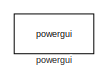
[diagram: root canvas - part 1/10, top left region]
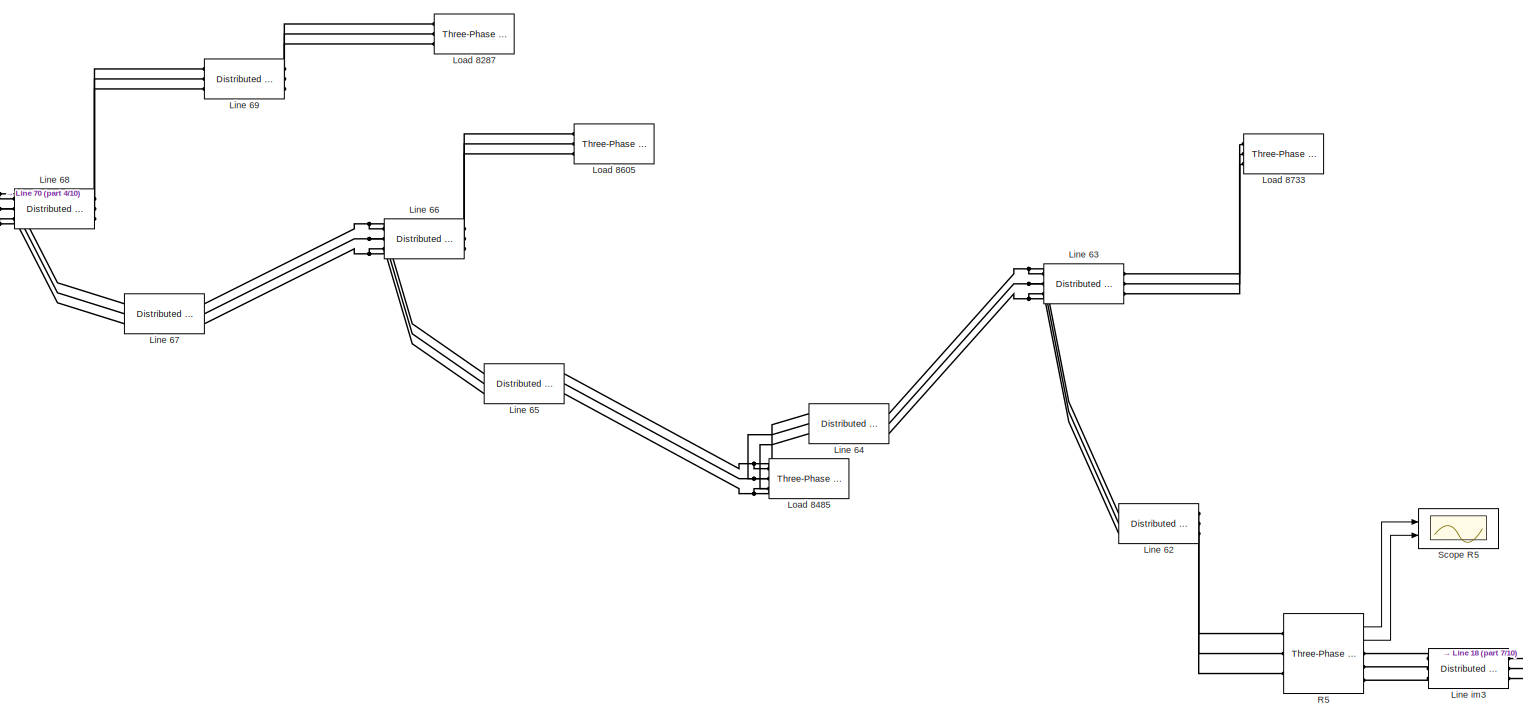
[diagram: root canvas - part 2/10, top left region]
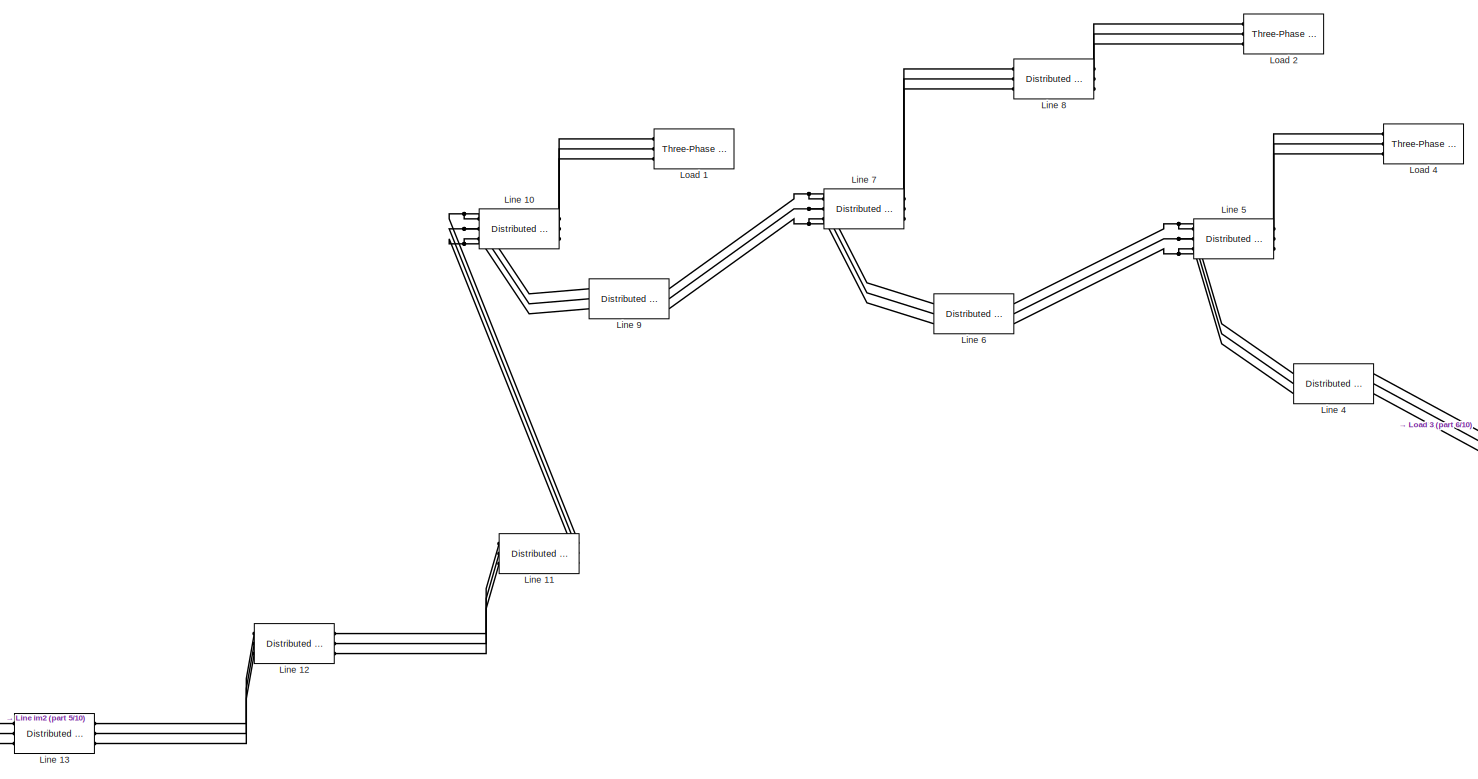
[diagram: root canvas - part 3/10, top right region]
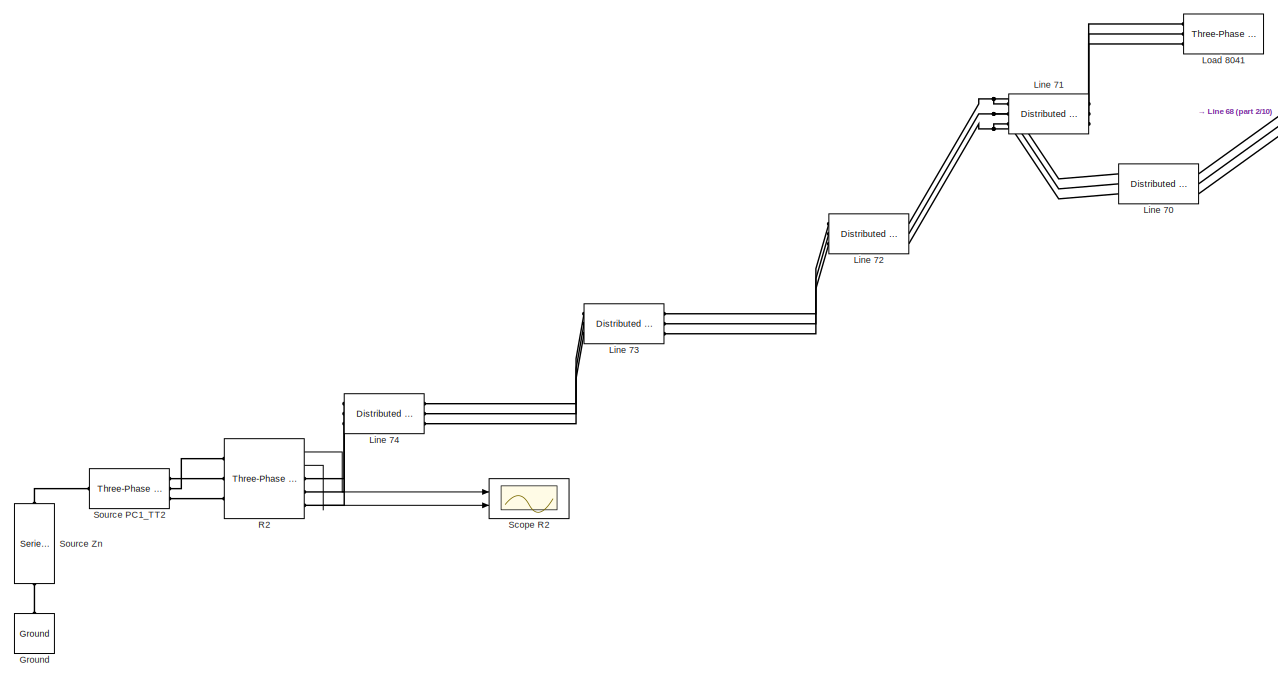
[diagram: root canvas - part 4/10, top left region]
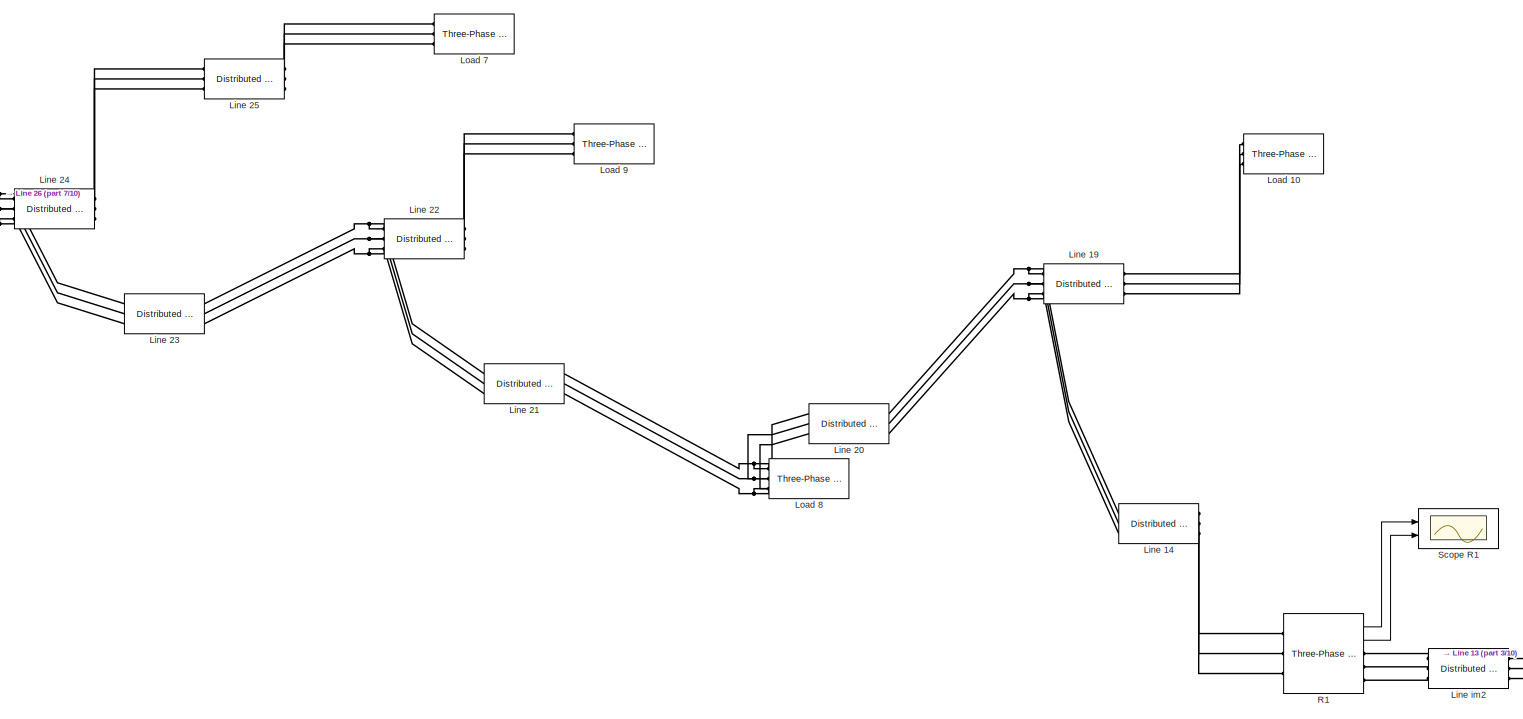
[diagram: root canvas - part 5/10, top center region]
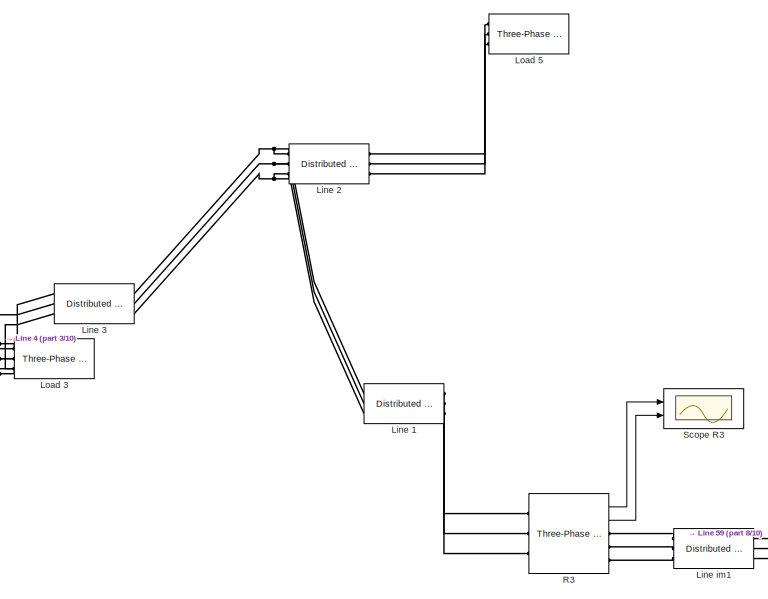
[diagram: root canvas - part 6/10, top right region]
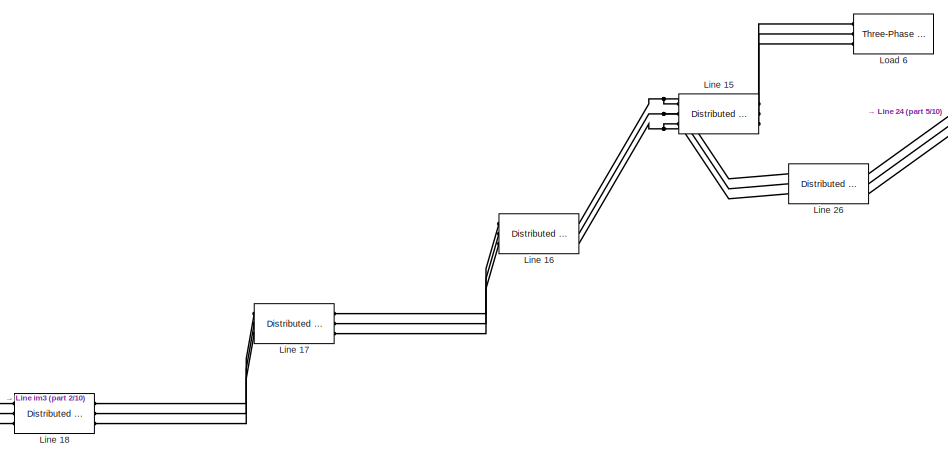
[diagram: root canvas - part 7/10, top center region]
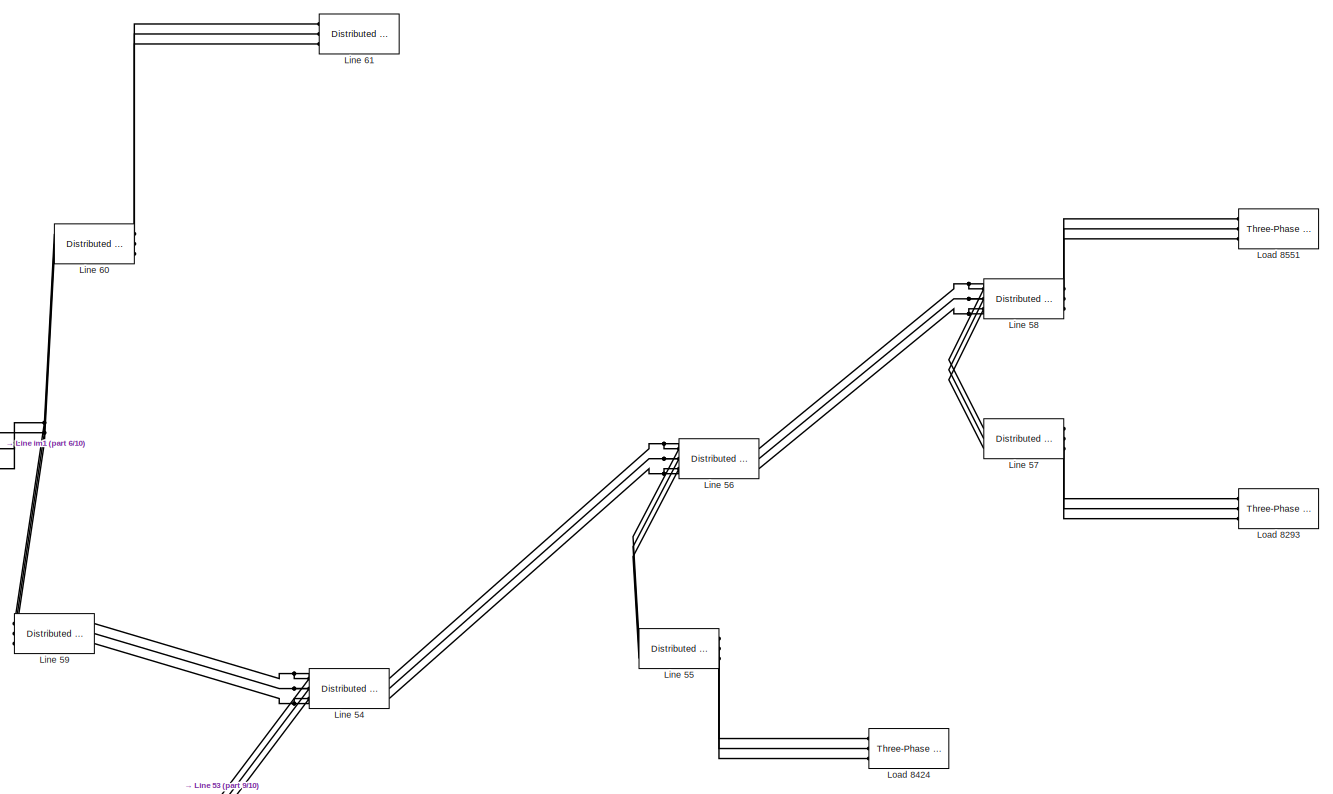
[diagram: root canvas - part 8/10, top right region]
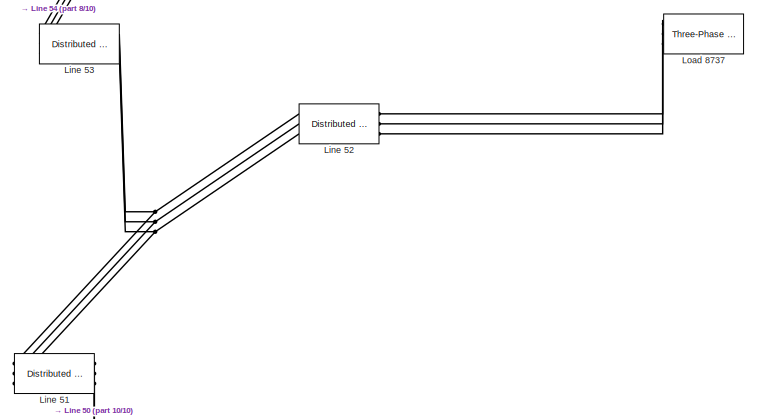
[diagram: root canvas - part 9/10, middle right region]
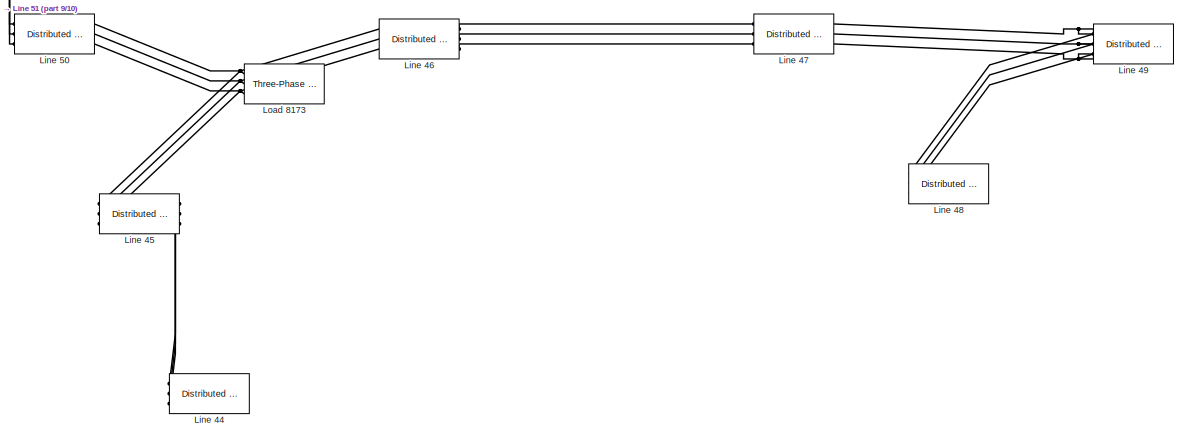
[diagram: root canvas - part 10/10, bottom right region]
MODEL slx_391ad38810cb
KIND model
CONFIG AbsTol = auto
CONFIG EnableMultiTasking = off
CONFIG FixedStep = 0.2
CONFIG MaxStep = auto
CONFIG MinStep = auto
CONFIG RelTol = 1e-3
CONFIG SampleTimeConstraint = Unconstrained
CONFIG SolverName = FixedStepAuto
CONFIG StartTime = 0
CONFIG StopTime = 0.2
BLOCK [Reference] Ground  REF=spsGroundLib/Ground
  NameLocation = right
  Ports = [0, 0, 0, 0, 0, 1]
  SourceBlock = spsGroundLib/Ground
  SourceProductBaseCode = PS
  SourceType = Ground
BLOCK [Reference] Line 1  REF=spsDistributedParametersLineLib/Distributed Parameters Line
  Ports = [0, 0, 0, 0, 0, 3, 3]
  SourceBlock = spsDistributedParametersLineLib/Distributed Parameters Line
  SourceProductBaseCode = PS
  SourceType = Distributed Parameters Line
BLOCK [Reference] Line 10  REF=spsDistributedParametersLineLib/Distributed Parameters Line
  Ports = [0, 0, 0, 0, 0, 3, 3]
  SourceBlock = spsDistributedParametersLineLib/Distributed Parameters Line
  SourceProductBaseCode = PS
  SourceType = Distributed Parameters Line
BLOCK [Reference] Line 11  REF=spsDistributedParametersLineLib/Distributed Parameters Line
  Ports = [0, 0, 0, 0, 0, 3, 3]
  SourceBlock = spsDistributedParametersLineLib/Distributed Parameters Line
  SourceProductBaseCode = PS
  SourceType = Distributed Parameters Line
BLOCK [Reference] Line 12  REF=spsDistributedParametersLineLib/Distributed Parameters Line
  Ports = [0, 0, 0, 0, 0, 3, 3]
  SourceBlock = spsDistributedParametersLineLib/Distributed Parameters Line
  SourceProductBaseCode = PS
  SourceType = Distributed Parameters Line
BLOCK [Reference] Line 13  REF=spsDistributedParametersLineLib/Distributed Parameters Line
  Ports = [0, 0, 0, 0, 0, 3, 3]
  SourceBlock = spsDistributedParametersLineLib/Distributed Parameters Line
  SourceProductBaseCode = PS
  SourceType = Distributed Parameters Line
BLOCK [Reference] Line 14  REF=spsDistributedParametersLineLib/Distributed Parameters Line
  Ports = [0, 0, 0, 0, 0, 3, 3]
  SourceBlock = spsDistributedParametersLineLib/Distributed Parameters Line
  SourceProductBaseCode = PS
  SourceType = Distributed Parameters Line
BLOCK [Reference] Line 15  REF=spsDistributedParametersLineLib/Distributed Parameters Line
  Ports = [0, 0, 0, 0, 0, 3, 3]
  SourceBlock = spsDistributedParametersLineLib/Distributed Parameters Line
  SourceProductBaseCode = PS
  SourceType = Distributed Parameters Line
BLOCK [Reference] Line 16  REF=spsDistributedParametersLineLib/Distributed Parameters Line
  Ports = [0, 0, 0, 0, 0, 3, 3]
  SourceBlock = spsDistributedParametersLineLib/Distributed Parameters Line
  SourceProductBaseCode = PS
  SourceType = Distributed Parameters Line
BLOCK [Reference] Line 17  REF=spsDistributedParametersLineLib/Distributed Parameters Line
  Ports = [0, 0, 0, 0, 0, 3, 3]
  SourceBlock = spsDistributedParametersLineLib/Distributed Parameters Line
  SourceProductBaseCode = PS
  SourceType = Distributed Parameters Line
BLOCK [Reference] Line 18  REF=spsDistributedParametersLineLib/Distributed Parameters Line
  Ports = [0, 0, 0, 0, 0, 3, 3]
  SourceBlock = spsDistributedParametersLineLib/Distributed Parameters Line
  SourceProductBaseCode = PS
  SourceType = Distributed Parameters Line
BLOCK [Reference] Line 19  REF=spsDistributedParametersLineLib/Distributed Parameters Line
  Ports = [0, 0, 0, 0, 0, 3, 3]
  SourceBlock = spsDistributedParametersLineLib/Distributed Parameters Line
  SourceProductBaseCode = PS
  SourceType = Distributed Parameters Line
BLOCK [Reference] Line 2  REF=spsDistributedParametersLineLib/Distributed Parameters Line
  Ports = [0, 0, 0, 0, 0, 3, 3]
  SourceBlock = spsDistributedParametersLineLib/Distributed Parameters Line
  SourceProductBaseCode = PS
  SourceType = Distributed Parameters Line
BLOCK [Reference] Line 20  REF=spsDistributedParametersLineLib/Distributed Parameters Line
  Ports = [0, 0, 0, 0, 0, 3, 3]
  SourceBlock = spsDistributedParametersLineLib/Distributed Parameters Line
  SourceProductBaseCode = PS
  SourceType = Distributed Parameters Line
BLOCK [Reference] Line 21  REF=spsDistributedParametersLineLib/Distributed Parameters Line
  Ports = [0, 0, 0, 0, 0, 3, 3]
  SourceBlock = spsDistributedParametersLineLib/Distributed Parameters Line
  SourceProductBaseCode = PS
  SourceType = Distributed Parameters Line
BLOCK [Reference] Line 22  REF=spsDistributedParametersLineLib/Distributed Parameters Line
  Ports = [0, 0, 0, 0, 0, 3, 3]
  SourceBlock = spsDistributedParametersLineLib/Distributed Parameters Line
  SourceProductBaseCode = PS
  SourceType = Distributed Parameters Line
BLOCK [Reference] Line 23  REF=spsDistributedParametersLineLib/Distributed Parameters Line
  Ports = [0, 0, 0, 0, 0, 3, 3]
  SourceBlock = spsDistributedParametersLineLib/Distributed Parameters Line
  SourceProductBaseCode = PS
  SourceType = Distributed Parameters Line
BLOCK [Reference] Line 24  REF=spsDistributedParametersLineLib/Distributed Parameters Line
  Ports = [0, 0, 0, 0, 0, 3, 3]
  SourceBlock = spsDistributedParametersLineLib/Distributed Parameters Line
  SourceProductBaseCode = PS
  SourceType = Distributed Parameters Line
BLOCK [Reference] Line 25  REF=spsDistributedParametersLineLib/Distributed Parameters Line
  Ports = [0, 0, 0, 0, 0, 3, 3]
  SourceBlock = spsDistributedParametersLineLib/Distributed Parameters Line
  SourceProductBaseCode = PS
  SourceType = Distributed Parameters Line
BLOCK [Reference] Line 26  REF=spsDistributedParametersLineLib/Distributed Parameters Line
  Ports = [0, 0, 0, 0, 0, 3, 3]
  SourceBlock = spsDistributedParametersLineLib/Distributed Parameters Line
  SourceProductBaseCode = PS
  SourceType = Distributed Parameters Line
BLOCK [Reference] Line 3  REF=spsDistributedParametersLineLib/Distributed Parameters Line
  Ports = [0, 0, 0, 0, 0, 3, 3]
  SourceBlock = spsDistributedParametersLineLib/Distributed Parameters Line
  SourceProductBaseCode = PS
  SourceType = Distributed Parameters Line
BLOCK [Reference] Line 4  REF=spsDistributedParametersLineLib/Distributed Parameters Line
  Ports = [0, 0, 0, 0, 0, 3, 3]
  SourceBlock = spsDistributedParametersLineLib/Distributed Parameters Line
  SourceProductBaseCode = PS
  SourceType = Distributed Parameters Line
BLOCK [Reference] Line 44  REF=spsDistributedParametersLineLib/Distributed Parameters Line
  Ports = [0, 0, 0, 0, 0, 3, 3]
  SourceBlock = spsDistributedParametersLineLib/Distributed Parameters Line
  SourceProductBaseCode = PS
  SourceType = Distributed Parameters Line
BLOCK [Reference] Line 45  REF=spsDistributedParametersLineLib/Distributed Parameters Line
  Ports = [0, 0, 0, 0, 0, 3, 3]
  SourceBlock = spsDistributedParametersLineLib/Distributed Parameters Line
  SourceProductBaseCode = PS
  SourceType = Distributed Parameters Line
BLOCK [Reference] Line 46  REF=spsDistributedParametersLineLib/Distributed Parameters Line
  Ports = [0, 0, 0, 0, 0, 3, 3]
  SourceBlock = spsDistributedParametersLineLib/Distributed Parameters Line
  SourceProductBaseCode = PS
  SourceType = Distributed Parameters Line
BLOCK [Reference] Line 47  REF=spsDistributedParametersLineLib/Distributed Parameters Line
  Ports = [0, 0, 0, 0, 0, 3, 3]
  SourceBlock = spsDistributedParametersLineLib/Distributed Parameters Line
  SourceProductBaseCode = PS
  SourceType = Distributed Parameters Line
BLOCK [Reference] Line 48  REF=spsDistributedParametersLineLib/Distributed Parameters Line
  Ports = [0, 0, 0, 0, 0, 3, 3]
  SourceBlock = spsDistributedParametersLineLib/Distributed Parameters Line
  SourceProductBaseCode = PS
  SourceType = Distributed Parameters Line
BLOCK [Reference] Line 49  REF=spsDistributedParametersLineLib/Distributed Parameters Line
  Ports = [0, 0, 0, 0, 0, 3, 3]
  SourceBlock = spsDistributedParametersLineLib/Distributed Parameters Line
  SourceProductBaseCode = PS
  SourceType = Distributed Parameters Line
BLOCK [Reference] Line 5  REF=spsDistributedParametersLineLib/Distributed Parameters Line
  Ports = [0, 0, 0, 0, 0, 3, 3]
  SourceBlock = spsDistributedParametersLineLib/Distributed Parameters Line
  SourceProductBaseCode = PS
  SourceType = Distributed Parameters Line
BLOCK [Reference] Line 50  REF=spsDistributedParametersLineLib/Distributed Parameters Line
  Ports = [0, 0, 0, 0, 0, 3, 3]
  SourceBlock = spsDistributedParametersLineLib/Distributed Parameters Line
  SourceProductBaseCode = PS
  SourceType = Distributed Parameters Line
BLOCK [Reference] Line 51  REF=spsDistributedParametersLineLib/Distributed Parameters Line
  Ports = [0, 0, 0, 0, 0, 3, 3]
  SourceBlock = spsDistributedParametersLineLib/Distributed Parameters Line
  SourceProductBaseCode = PS
  SourceType = Distributed Parameters Line
BLOCK [Reference] Line 52  REF=spsDistributedParametersLineLib/Distributed Parameters Line
  Ports = [0, 0, 0, 0, 0, 3, 3]
  SourceBlock = spsDistributedParametersLineLib/Distributed Parameters Line
  SourceProductBaseCode = PS
  SourceType = Distributed Parameters Line
BLOCK [Reference] Line 53  REF=spsDistributedParametersLineLib/Distributed Parameters Line
  Ports = [0, 0, 0, 0, 0, 3, 3]
  SourceBlock = spsDistributedParametersLineLib/Distributed Parameters Line
  SourceProductBaseCode = PS
  SourceType = Distributed Parameters Line
BLOCK [Reference] Line 54  REF=spsDistributedParametersLineLib/Distributed Parameters Line
  Ports = [0, 0, 0, 0, 0, 3, 3]
  SourceBlock = spsDistributedParametersLineLib/Distributed Parameters Line
  SourceProductBaseCode = PS
  SourceType = Distributed Parameters Line
BLOCK [Reference] Line 55  REF=spsDistributedParametersLineLib/Distributed Parameters Line
  Ports = [0, 0, 0, 0, 0, 3, 3]
  SourceBlock = spsDistributedParametersLineLib/Distributed Parameters Line
  SourceProductBaseCode = PS
  SourceType = Distributed Parameters Line
BLOCK [Reference] Line 56  REF=spsDistributedParametersLineLib/Distributed Parameters Line
  Ports = [0, 0, 0, 0, 0, 3, 3]
  SourceBlock = spsDistributedParametersLineLib/Distributed Parameters Line
  SourceProductBaseCode = PS
  SourceType = Distributed Parameters Line
BLOCK [Reference] Line 57  REF=spsDistributedParametersLineLib/Distributed Parameters Line
  Ports = [0, 0, 0, 0, 0, 3, 3]
  SourceBlock = spsDistributedParametersLineLib/Distributed Parameters Line
  SourceProductBaseCode = PS
  SourceType = Distributed Parameters Line
BLOCK [Reference] Line 58  REF=spsDistributedParametersLineLib/Distributed Parameters Line
  Ports = [0, 0, 0, 0, 0, 3, 3]
  SourceBlock = spsDistributedParametersLineLib/Distributed Parameters Line
  SourceProductBaseCode = PS
  SourceType = Distributed Parameters Line
BLOCK [Reference] Line 59  REF=spsDistributedParametersLineLib/Distributed Parameters Line
  Ports = [0, 0, 0, 0, 0, 3, 3]
  SourceBlock = spsDistributedParametersLineLib/Distributed Parameters Line
  SourceProductBaseCode = PS
  SourceType = Distributed Parameters Line
BLOCK [Reference] Line 6  REF=spsDistributedParametersLineLib/Distributed Parameters Line
  Ports = [0, 0, 0, 0, 0, 3, 3]
  SourceBlock = spsDistributedParametersLineLib/Distributed Parameters Line
  SourceProductBaseCode = PS
  SourceType = Distributed Parameters Line
BLOCK [Reference] Line 60  REF=spsDistributedParametersLineLib/Distributed Parameters Line
  Ports = [0, 0, 0, 0, 0, 3, 3]
  SourceBlock = spsDistributedParametersLineLib/Distributed Parameters Line
  SourceProductBaseCode = PS
  SourceType = Distributed Parameters Line
BLOCK [Reference] Line 61  REF=spsDistributedParametersLineLib/Distributed Parameters Line
  Ports = [0, 0, 0, 0, 0, 3, 3]
  SourceBlock = spsDistributedParametersLineLib/Distributed Parameters Line
  SourceProductBaseCode = PS
  SourceType = Distributed Parameters Line
BLOCK [Reference] Line 62  REF=spsDistributedParametersLineLib/Distributed Parameters Line
  Ports = [0, 0, 0, 0, 0, 3, 3]
  SourceBlock = spsDistributedParametersLineLib/Distributed Parameters Line
  SourceProductBaseCode = PS
  SourceType = Distributed Parameters Line
BLOCK [Reference] Line 63  REF=spsDistributedParametersLineLib/Distributed Parameters Line
  Ports = [0, 0, 0, 0, 0, 3, 3]
  SourceBlock = spsDistributedParametersLineLib/Distributed Parameters Line
  SourceProductBaseCode = PS
  SourceType = Distributed Parameters Line
BLOCK [Reference] Line 64  REF=spsDistributedParametersLineLib/Distributed Parameters Line
  Ports = [0, 0, 0, 0, 0, 3, 3]
  SourceBlock = spsDistributedParametersLineLib/Distributed Parameters Line
  SourceProductBaseCode = PS
  SourceType = Distributed Parameters Line
BLOCK [Reference] Line 65  REF=spsDistributedParametersLineLib/Distributed Parameters Line
  Ports = [0, 0, 0, 0, 0, 3, 3]
  SourceBlock = spsDistributedParametersLineLib/Distributed Parameters Line
  SourceProductBaseCode = PS
  SourceType = Distributed Parameters Line
BLOCK [Reference] Line 66  REF=spsDistributedParametersLineLib/Distributed Parameters Line
  Ports = [0, 0, 0, 0, 0, 3, 3]
  SourceBlock = spsDistributedParametersLineLib/Distributed Parameters Line
  SourceProductBaseCode = PS
  SourceType = Distributed Parameters Line
BLOCK [Reference] Line 67  REF=spsDistributedParametersLineLib/Distributed Parameters Line
  Ports = [0, 0, 0, 0, 0, 3, 3]
  SourceBlock = spsDistributedParametersLineLib/Distributed Parameters Line
  SourceProductBaseCode = PS
  SourceType = Distributed Parameters Line
BLOCK [Reference] Line 68  REF=spsDistributedParametersLineLib/Distributed Parameters Line
  Ports = [0, 0, 0, 0, 0, 3, 3]
  SourceBlock = spsDistributedParametersLineLib/Distributed Parameters Line
  SourceProductBaseCode = PS
  SourceType = Distributed Parameters Line
BLOCK [Reference] Line 69  REF=spsDistributedParametersLineLib/Distributed Parameters Line
  Ports = [0, 0, 0, 0, 0, 3, 3]
  SourceBlock = spsDistributedParametersLineLib/Distributed Parameters Line
  SourceProductBaseCode = PS
  SourceType = Distributed Parameters Line
BLOCK [Reference] Line 7  REF=spsDistributedParametersLineLib/Distributed Parameters Line
  Ports = [0, 0, 0, 0, 0, 3, 3]
  SourceBlock = spsDistributedParametersLineLib/Distributed Parameters Line
  SourceProductBaseCode = PS
  SourceType = Distributed Parameters Line
BLOCK [Reference] Line 70  REF=spsDistributedParametersLineLib/Distributed Parameters Line
  Ports = [0, 0, 0, 0, 0, 3, 3]
  SourceBlock = spsDistributedParametersLineLib/Distributed Parameters Line
  SourceProductBaseCode = PS
  SourceType = Distributed Parameters Line
BLOCK [Reference] Line 71  REF=spsDistributedParametersLineLib/Distributed Parameters Line
  Ports = [0, 0, 0, 0, 0, 3, 3]
  SourceBlock = spsDistributedParametersLineLib/Distributed Parameters Line
  SourceProductBaseCode = PS
  SourceType = Distributed Parameters Line
BLOCK [Reference] Line 72  REF=spsDistributedParametersLineLib/Distributed Parameters Line
  Ports = [0, 0, 0, 0, 0, 3, 3]
  SourceBlock = spsDistributedParametersLineLib/Distributed Parameters Line
  SourceProductBaseCode = PS
  SourceType = Distributed Parameters Line
BLOCK [Reference] Line 73  REF=spsDistributedParametersLineLib/Distributed Parameters Line
  Ports = [0, 0, 0, 0, 0, 3, 3]
  SourceBlock = spsDistributedParametersLineLib/Distributed Parameters Line
  SourceProductBaseCode = PS
  SourceType = Distributed Parameters Line
BLOCK [Reference] Line 74  REF=spsDistributedParametersLineLib/Distributed Parameters Line
  Ports = [0, 0, 0, 0, 0, 3, 3]
  SourceBlock = spsDistributedParametersLineLib/Distributed Parameters Line
  SourceProductBaseCode = PS
  SourceType = Distributed Parameters Line
BLOCK [Reference] Line 8  REF=spsDistributedParametersLineLib/Distributed Parameters Line
  Ports = [0, 0, 0, 0, 0, 3, 3]
  SourceBlock = spsDistributedParametersLineLib/Distributed Parameters Line
  SourceProductBaseCode = PS
  SourceType = Distributed Parameters Line
BLOCK [Reference] Line 9  REF=spsDistributedParametersLineLib/Distributed Parameters Line
  Ports = [0, 0, 0, 0, 0, 3, 3]
  SourceBlock = spsDistributedParametersLineLib/Distributed Parameters Line
  SourceProductBaseCode = PS
  SourceType = Distributed Parameters Line
BLOCK [Reference] Line im1  REF=spsDistributedParametersLineLib/Distributed Parameters Line
  Ports = [0, 0, 0, 0, 0, 3, 3]
  SourceBlock = spsDistributedParametersLineLib/Distributed Parameters Line
  SourceProductBaseCode = PS
  SourceType = Distributed Parameters Line
BLOCK [Reference] Line im2  REF=spsDistributedParametersLineLib/Distributed Parameters Line
  Ports = [0, 0, 0, 0, 0, 3, 3]
  SourceBlock = spsDistributedParametersLineLib/Distributed Parameters Line
  SourceProductBaseCode = PS
  SourceType = Distributed Parameters Line
BLOCK [Reference] Line im3  REF=spsDistributedParametersLineLib/Distributed Parameters Line
  Ports = [0, 0, 0, 0, 0, 3, 3]
  SourceBlock = spsDistributedParametersLineLib/Distributed Parameters Line
  SourceProductBaseCode = PS
  SourceType = Distributed Parameters Line
BLOCK [Reference] Load 1  REF=spsThreePhaseSeriesRLCLoadLib/Three-Phase
Series RLC Load
  AttributesFormatString = \n
  NameLocation = top
  Ports = [0, 0, 0, 0, 0, 3]
  SourceBlock = spsThreePhaseSeriesRLCLoadLib/Three-Phase\nSeries RLC Load
  SourceProductBaseCode = PS
  SourceType = Three-Phase Series RLC Load
BLOCK [Reference] Load 10  REF=spsThreePhaseSeriesRLCLoadLib/Three-Phase
Series RLC Load
  AttributesFormatString = \n
  NameLocation = top
  Ports = [0, 0, 0, 0, 0, 3]
  SourceBlock = spsThreePhaseSeriesRLCLoadLib/Three-Phase\nSeries RLC Load
  SourceProductBaseCode = PS
  SourceType = Three-Phase Series RLC Load
BLOCK [Reference] Load 2  REF=spsThreePhaseSeriesRLCLoadLib/Three-Phase
Series RLC Load
  AttributesFormatString = \n
  NameLocation = top
  Ports = [0, 0, 0, 0, 0, 3]
  SourceBlock = spsThreePhaseSeriesRLCLoadLib/Three-Phase\nSeries RLC Load
  SourceProductBaseCode = PS
  SourceType = Three-Phase Series RLC Load
BLOCK [Reference] Load 3  REF=spsThreePhaseSeriesRLCLoadLib/Three-Phase
Series RLC Load
  AttributesFormatString = \n
  NameLocation = top
  Ports = [0, 0, 0, 0, 0, 3]
  SourceBlock = spsThreePhaseSeriesRLCLoadLib/Three-Phase\nSeries RLC Load
  SourceProductBaseCode = PS
  SourceType = Three-Phase Series RLC Load
BLOCK [Reference] Load 4  REF=spsThreePhaseSeriesRLCLoadLib/Three-Phase
Series RLC Load
  AttributesFormatString = \n
  NameLocation = top
  Ports = [0, 0, 0, 0, 0, 3]
  SourceBlock = spsThreePhaseSeriesRLCLoadLib/Three-Phase\nSeries RLC Load
  SourceProductBaseCode = PS
  SourceType = Three-Phase Series RLC Load
BLOCK [Reference] Load 5  REF=spsThreePhaseSeriesRLCLoadLib/Three-Phase
Series RLC Load
  AttributesFormatString = \n
  NameLocation = top
  Ports = [0, 0, 0, 0, 0, 3]
  SourceBlock = spsThreePhaseSeriesRLCLoadLib/Three-Phase\nSeries RLC Load
  SourceProductBaseCode = PS
  SourceType = Three-Phase Series RLC Load
BLOCK [Reference] Load 6  REF=spsThreePhaseSeriesRLCLoadLib/Three-Phase
Series RLC Load
  AttributesFormatString = \n
  NameLocation = top
  Ports = [0, 0, 0, 0, 0, 3]
  SourceBlock = spsThreePhaseSeriesRLCLoadLib/Three-Phase\nSeries RLC Load
  SourceProductBaseCode = PS
  SourceType = Three-Phase Series RLC Load
BLOCK [Reference] Load 7  REF=spsThreePhaseSeriesRLCLoadLib/Three-Phase
Series RLC Load
  AttributesFormatString = \n
  NameLocation = top
  Ports = [0, 0, 0, 0, 0, 3]
  SourceBlock = spsThreePhaseSeriesRLCLoadLib/Three-Phase\nSeries RLC Load
  SourceProductBaseCode = PS
  SourceType = Three-Phase Series RLC Load
BLOCK [Reference] Load 8  REF=spsThreePhaseSeriesRLCLoadLib/Three-Phase
Series RLC Load
  AttributesFormatString = \n
  NameLocation = top
  Ports = [0, 0, 0, 0, 0, 3]
  SourceBlock = spsThreePhaseSeriesRLCLoadLib/Three-Phase\nSeries RLC Load
  SourceProductBaseCode = PS
  SourceType = Three-Phase Series RLC Load
BLOCK [Reference] Load 8041  REF=spsThreePhaseSeriesRLCLoadLib/Three-Phase
Series RLC Load
  AttributesFormatString = \n
  NameLocation = top
  Ports = [0, 0, 0, 0, 0, 3]
  SourceBlock = spsThreePhaseSeriesRLCLoadLib/Three-Phase\nSeries RLC Load
  SourceProductBaseCode = PS
  SourceType = Three-Phase Series RLC Load
BLOCK [Reference] Load 8173  REF=spsThreePhaseSeriesRLCLoadLib/Three-Phase
Series RLC Load
  AttributesFormatString = \n
  NameLocation = top
  Ports = [0, 0, 0, 0, 0, 3]
  SourceBlock = spsThreePhaseSeriesRLCLoadLib/Three-Phase\nSeries RLC Load
  SourceProductBaseCode = PS
  SourceType = Three-Phase Series RLC Load
BLOCK [Reference] Load 8287  REF=spsThreePhaseSeriesRLCLoadLib/Three-Phase
Series RLC Load
  AttributesFormatString = \n
  NameLocation = top
  Ports = [0, 0, 0, 0, 0, 3]
  SourceBlock = spsThreePhaseSeriesRLCLoadLib/Three-Phase\nSeries RLC Load
  SourceProductBaseCode = PS
  SourceType = Three-Phase Series RLC Load
BLOCK [Reference] Load 8293  REF=spsThreePhaseSeriesRLCLoadLib/Three-Phase
Series RLC Load
  AttributesFormatString = \n
  NameLocation = top
  Ports = [0, 0, 0, 0, 0, 3]
  SourceBlock = spsThreePhaseSeriesRLCLoadLib/Three-Phase\nSeries RLC Load
  SourceProductBaseCode = PS
  SourceType = Three-Phase Series RLC Load
BLOCK [Reference] Load 8424  REF=spsThreePhaseSeriesRLCLoadLib/Three-Phase
Series RLC Load
  AttributesFormatString = \n
  NameLocation = top
  Ports = [0, 0, 0, 0, 0, 3]
  SourceBlock = spsThreePhaseSeriesRLCLoadLib/Three-Phase\nSeries RLC Load
  SourceProductBaseCode = PS
  SourceType = Three-Phase Series RLC Load
BLOCK [Reference] Load 8485  REF=spsThreePhaseSeriesRLCLoadLib/Three-Phase
Series RLC Load
  AttributesFormatString = \n
  NameLocation = top
  Ports = [0, 0, 0, 0, 0, 3]
  SourceBlock = spsThreePhaseSeriesRLCLoadLib/Three-Phase\nSeries RLC Load
  SourceProductBaseCode = PS
  SourceType = Three-Phase Series RLC Load
BLOCK [Reference] Load 8551  REF=spsThreePhaseSeriesRLCLoadLib/Three-Phase
Series RLC Load
  AttributesFormatString = \n
  NameLocation = top
  Ports = [0, 0, 0, 0, 0, 3]
  SourceBlock = spsThreePhaseSeriesRLCLoadLib/Three-Phase\nSeries RLC Load
  SourceProductBaseCode = PS
  SourceType = Three-Phase Series RLC Load
BLOCK [Reference] Load 8605  REF=spsThreePhaseSeriesRLCLoadLib/Three-Phase
Series RLC Load
  AttributesFormatString = \n
  NameLocation = top
  Ports = [0, 0, 0, 0, 0, 3]
  SourceBlock = spsThreePhaseSeriesRLCLoadLib/Three-Phase\nSeries RLC Load
  SourceProductBaseCode = PS
  SourceType = Three-Phase Series RLC Load
BLOCK [Reference] Load 8733  REF=spsThreePhaseSeriesRLCLoadLib/Three-Phase
Series RLC Load
  AttributesFormatString = \n
  NameLocation = top
  Ports = [0, 0, 0, 0, 0, 3]
  SourceBlock = spsThreePhaseSeriesRLCLoadLib/Three-Phase\nSeries RLC Load
  SourceProductBaseCode = PS
  SourceType = Three-Phase Series RLC Load
BLOCK [Reference] Load 8737  REF=spsThreePhaseSeriesRLCLoadLib/Three-Phase
Series RLC Load
  AttributesFormatString = \n
  NameLocation = top
  Ports = [0, 0, 0, 0, 0, 3]
  SourceBlock = spsThreePhaseSeriesRLCLoadLib/Three-Phase\nSeries RLC Load
  SourceProductBaseCode = PS
  SourceType = Three-Phase Series RLC Load
BLOCK [Reference] Load 9  REF=spsThreePhaseSeriesRLCLoadLib/Three-Phase
Series RLC Load
  AttributesFormatString = \n
  NameLocation = top
  Ports = [0, 0, 0, 0, 0, 3]
  SourceBlock = spsThreePhaseSeriesRLCLoadLib/Three-Phase\nSeries RLC Load
  SourceProductBaseCode = PS
  SourceType = Three-Phase Series RLC Load
BLOCK [Reference] R1  REF=spsThreePhaseVIMeasurementLib/Three-Phase
V-I Measurement
  Ports = [0, 2, 0, 0, 0, 3, 3]
  SourceBlock = spsThreePhaseVIMeasurementLib/Three-Phase\nV-I Measurement
  SourceProductBaseCode = PS
  SourceType = Three-Phase VI Measurement
BLOCK [Reference] R2  REF=spsThreePhaseVIMeasurementLib/Three-Phase
V-I Measurement
  Ports = [0, 2, 0, 0, 0, 3, 3]
  SourceBlock = spsThreePhaseVIMeasurementLib/Three-Phase\nV-I Measurement
  SourceProductBaseCode = PS
  SourceType = Three-Phase VI Measurement
BLOCK [Reference] R3  REF=spsThreePhaseVIMeasurementLib/Three-Phase
V-I Measurement
  Ports = [0, 2, 0, 0, 0, 3, 3]
  SourceBlock = spsThreePhaseVIMeasurementLib/Three-Phase\nV-I Measurement
  SourceProductBaseCode = PS
  SourceType = Three-Phase VI Measurement
BLOCK [Reference] R5  REF=spsThreePhaseVIMeasurementLib/Three-Phase
V-I Measurement
  Ports = [0, 2, 0, 0, 0, 3, 3]
  SourceBlock = spsThreePhaseVIMeasurementLib/Three-Phase\nV-I Measurement
  SourceProductBaseCode = PS
  SourceType = Three-Phase VI Measurement
BLOCK [Scope] Scope R1
  Floating = off
  NumInputPorts = 2
  Ports = [2]
  ScopeSpecificationString = Simulink.scopes.TimeScopeBlockCfg('CurrentConfiguration', extmgr.ConfigurationSet(extmgr.Configuration('Core','General UI',true),extmgr.Configuration('Core','Source UI',true),extmgr.Configuration('Sources','WiredSimulink',true,'DataLogging',true,'DataLoggingSaveFormat','StructureWithTime','DataLoggingVariableName','ScopeData2'),extmgr.Configuration('Visuals','Time Domain',true,'SerializedDisplays'...<+1380ch>
BLOCK [Scope] Scope R2
  Floating = off
  NumInputPorts = 2
  Ports = [2]
  ScopeSpecificationString = Simulink.scopes.TimeScopeBlockCfg('CurrentConfiguration', extmgr.ConfigurationSet(extmgr.Configuration('Core','General UI',true),extmgr.Configuration('Core','Source UI',true),extmgr.Configuration('Sources','WiredSimulink',true,'DataLogging',true,'DataLoggingSaveFormat','StructureWithTime','DataLoggingVariableName','ScopeData1'),extmgr.Configuration('Visuals','Time Domain',true,'SerializedDisplays'...<+1686ch>
BLOCK [Scope] Scope R3
  Floating = off
  NumInputPorts = 2
  Ports = [2]
  ScopeSpecificationString = Simulink.scopes.TimeScopeBlockCfg('CurrentConfiguration', extmgr.ConfigurationSet(extmgr.Configuration('Core','General UI',true),extmgr.Configuration('Core','Source UI',true),extmgr.Configuration('Sources','WiredSimulink',true,'DataLogging',true,'DataLoggingSaveFormat','StructureWithTime','DataLoggingVariableName','ScopeData3'),extmgr.Configuration('Visuals','Time Domain',true,'SerializedDisplays'...<+1380ch>
BLOCK [Scope] Scope R5
  Floating = off
  NumInputPorts = 2
  Ports = [2]
  ScopeSpecificationString = Simulink.scopes.TimeScopeBlockCfg('CurrentConfiguration', extmgr.ConfigurationSet(extmgr.Configuration('Core','General UI',true),extmgr.Configuration('Core','Source UI',true),extmgr.Configuration('Sources','WiredSimulink',true,'DataLogging',true,'DataLoggingSaveFormat','StructureWithTime'),extmgr.Configuration('Visuals','Time Domain',true,'SerializedDisplays',{struct('MinYLimReal','-10','MaxYLimRe...<+1341ch>
BLOCK [Reference] Source PC1_TT2  REF=spsThreePhaseSourceLib/Three-Phase Source
  Ports = [0, 0, 0, 0, 0, 1, 3]
  SourceBlock = spsThreePhaseSourceLib/Three-Phase Source
  SourceProductBaseCode = PS
  SourceType = Three-Phase Source
BLOCK [Reference] Source Zn  REF=spsSeriesRLCBranchLib/Series RLC Branch
  NameLocation = right
  Ports = [0, 0, 0, 0, 0, 1, 1]
  SourceBlock = spsSeriesRLCBranchLib/Series RLC Branch
  SourceProductBaseCode = PS
  SourceType = Series RLC Branch
BLOCK [Reference] powergui  REF=spspowerguiLib/powergui
  Ports = []
  Priority = 1
  SourceBlock = spspowerguiLib/powergui
  SourceProductBaseCode = PS
  SourceType = PSB option menu block
LINE R1:1 -> Scope R1:1
LINE R1:2 -> Scope R1:2
LINE R2:1 -> Scope R2:1
LINE R2:2 -> Scope R2:2
LINE R3:1 -> Scope R3:1
LINE R3:2 -> Scope R3:2
LINE R5:1 -> Scope R5:1
LINE R5:2 -> Scope R5:2
PLINE Ground:LConn1 -- Source Zn:LConn1
PNET net1: Line 10:LConn1 -- Line 11:RConn1 -- Line 9:LConn1
PNET net2: Line 10:LConn2 -- Line 11:RConn2 -- Line 9:LConn2
PNET net3: Line 10:LConn3 -- Line 11:RConn3 -- Line 9:LConn3
PLINE Line 10:RConn1 -- Load 1:LConn1
PLINE Line 10:RConn2 -- Load 1:LConn2
PLINE Line 10:RConn3 -- Load 1:LConn3
PLINE Line 11:LConn1 -- Line 12:RConn1
PLINE Line 11:LConn2 -- Line 12:RConn2
PLINE Line 11:LConn3 -- Line 12:RConn3
PLINE Line 12:LConn1 -- Line 13:RConn1
PLINE Line 12:LConn2 -- Line 13:RConn2
PLINE Line 12:LConn3 -- Line 13:RConn3
PLINE Line 13:LConn1 -- Line im2:RConn1
PLINE Line 13:LConn2 -- Line im2:RConn2
PLINE Line 13:LConn3 -- Line im2:RConn3
PNET net4: Line 14:LConn1 -- Line 19:LConn1 -- Line 20:RConn1
PNET net5: Line 14:LConn2 -- Line 19:LConn2 -- Line 20:RConn2
PNET net6: Line 14:LConn3 -- Line 19:LConn3 -- Line 20:RConn3
PLINE Line 14:RConn1 -- R1:LConn1
PLINE Line 14:RConn2 -- R1:LConn2
PLINE Line 14:RConn3 -- R1:LConn3
PNET net7: Line 15:LConn1 -- Line 16:RConn1 -- Line 26:LConn1
PNET net8: Line 15:LConn2 -- Line 16:RConn2 -- Line 26:LConn2
PNET net9: Line 15:LConn3 -- Line 16:RConn3 -- Line 26:LConn3
PLINE Line 15:RConn1 -- Load 6:LConn1
PLINE Line 15:RConn2 -- Load 6:LConn2
PLINE Line 15:RConn3 -- Load 6:LConn3
PLINE Line 16:LConn1 -- Line 17:RConn1
PLINE Line 16:LConn2 -- Line 17:RConn2
PLINE Line 16:LConn3 -- Line 17:RConn3
PLINE Line 17:LConn1 -- Line 18:RConn1
PLINE Line 17:LConn2 -- Line 18:RConn2
PLINE Line 17:LConn3 -- Line 18:RConn3
PLINE Line 18:LConn1 -- Line im3:RConn1
PLINE Line 18:LConn2 -- Line im3:RConn2
PLINE Line 18:LConn3 -- Line im3:RConn3
PLINE Line 19:RConn1 -- Load 10:LConn1
PLINE Line 19:RConn2 -- Load 10:LConn2
PLINE Line 19:RConn3 -- Load 10:LConn3
PNET net10: Line 1:LConn1 -- Line 2:LConn1 -- Line 3:RConn1
PNET net11: Line 1:LConn2 -- Line 2:LConn2 -- Line 3:RConn2
PNET net12: Line 1:LConn3 -- Line 2:LConn3 -- Line 3:RConn3
PLINE Line 1:RConn1 -- R3:LConn1
PLINE Line 1:RConn2 -- R3:LConn2
PLINE Line 1:RConn3 -- R3:LConn3
PNET net13: Line 20:LConn1 -- Line 21:RConn1 -- Load 8:LConn1
PNET net14: Line 20:LConn2 -- Line 21:RConn2 -- Load 8:LConn2
PNET net15: Line 20:LConn3 -- Line 21:RConn3 -- Load 8:LConn3
PNET net16: Line 21:LConn1 -- Line 22:LConn1 -- Line 23:RConn1
PNET net17: Line 21:LConn2 -- Line 22:LConn2 -- Line 23:RConn2
PNET net18: Line 21:LConn3 -- Line 22:LConn3 -- Line 23:RConn3
PLINE Line 22:RConn1 -- Load 9:LConn1
PLINE Line 22:RConn2 -- Load 9:LConn2
PLINE Line 22:RConn3 -- Load 9:LConn3
PNET net19: Line 23:LConn1 -- Line 24:LConn1 -- Line 26:RConn1
PNET net20: Line 23:LConn2 -- Line 24:LConn2 -- Line 26:RConn2
PNET net21: Line 23:LConn3 -- Line 24:LConn3 -- Line 26:RConn3
PLINE Line 24:RConn1 -- Line 25:LConn1
PLINE Line 24:RConn2 -- Line 25:LConn2
PLINE Line 24:RConn3 -- Line 25:LConn3
PLINE Line 25:RConn1 -- Load 7:LConn1
PLINE Line 25:RConn2 -- Load 7:LConn2
PLINE Line 25:RConn3 -- Load 7:LConn3
PLINE Line 2:RConn1 -- Load 5:LConn1
PLINE Line 2:RConn2 -- Load 5:LConn2
PLINE Line 2:RConn3 -- Load 5:LConn3
PNET net22: Line 3:LConn1 -- Line 4:RConn1 -- Load 3:LConn1
PNET net23: Line 3:LConn2 -- Line 4:RConn2 -- Load 3:LConn2
PNET net24: Line 3:LConn3 -- Line 4:RConn3 -- Load 3:LConn3
PLINE Line 44:LConn1 -- Line 45:RConn1
PLINE Line 44:LConn2 -- Line 45:RConn2
PLINE Line 44:LConn3 -- Line 45:RConn3
PNET net25: Line 45:LConn1 -- Line 46:LConn1 -- Line 50:RConn1 -- Load 8173:LConn1
PNET net26: Line 45:LConn2 -- Line 46:LConn2 -- Line 50:RConn2 -- Load 8173:LConn2
PNET net27: Line 45:LConn3 -- Line 46:LConn3 -- Line 50:RConn3 -- Load 8173:LConn3
PLINE Line 46:RConn1 -- Line 47:LConn1
PLINE Line 46:RConn2 -- Line 47:LConn2
PLINE Line 46:RConn3 -- Line 47:LConn3
PNET net28: Line 47:RConn1 -- Line 48:LConn1 -- Line 49:LConn1
PNET net29: Line 47:RConn2 -- Line 48:LConn2 -- Line 49:LConn2
PNET net30: Line 47:RConn3 -- Line 48:LConn3 -- Line 49:LConn3
PNET net31: Line 4:LConn1 -- Line 5:LConn1 -- Line 6:RConn1
PNET net32: Line 4:LConn2 -- Line 5:LConn2 -- Line 6:RConn2
PNET net33: Line 4:LConn3 -- Line 5:LConn3 -- Line 6:RConn3
PLINE Line 50:LConn1 -- Line 51:RConn1
PLINE Line 50:LConn2 -- Line 51:RConn2
PLINE Line 50:LConn3 -- Line 51:RConn3
PNET net34: Line 51:LConn1 -- Line 52:LConn1 -- Line 53:RConn1
PNET net35: Line 51:LConn2 -- Line 52:LConn2 -- Line 53:RConn2
PNET net36: Line 51:LConn3 -- Line 52:LConn3 -- Line 53:RConn3
PLINE Line 52:RConn1 -- Load 8737:LConn1
PLINE Line 52:RConn2 -- Load 8737:LConn2
PLINE Line 52:RConn3 -- Load 8737:LConn3
PNET net37: Line 53:LConn1 -- Line 54:LConn1 -- Line 59:RConn1
PNET net38: Line 53:LConn2 -- Line 54:LConn2 -- Line 59:RConn2
PNET net39: Line 53:LConn3 -- Line 54:LConn3 -- Line 59:RConn3
PNET net40: Line 54:RConn1 -- Line 55:LConn1 -- Line 56:LConn1
PNET net41: Line 54:RConn2 -- Line 55:LConn2 -- Line 56:LConn2
PNET net42: Line 54:RConn3 -- Line 55:LConn3 -- Line 56:LConn3
PLINE Line 55:RConn1 -- Load 8424:LConn1
PLINE Line 55:RConn2 -- Load 8424:LConn2
PLINE Line 55:RConn3 -- Load 8424:LConn3
PNET net43: Line 56:RConn1 -- Line 57:LConn1 -- Line 58:LConn1
PNET net44: Line 56:RConn2 -- Line 57:LConn2 -- Line 58:LConn2
PNET net45: Line 56:RConn3 -- Line 57:LConn3 -- Line 58:LConn3
PLINE Line 57:RConn1 -- Load 8293:LConn1
PLINE Line 57:RConn2 -- Load 8293:LConn2
PLINE Line 57:RConn3 -- Load 8293:LConn3
PLINE Line 58:RConn1 -- Load 8551:LConn1
PLINE Line 58:RConn2 -- Load 8551:LConn2
PLINE Line 58:RConn3 -- Load 8551:LConn3
PNET net46: Line 59:LConn1 -- Line 60:LConn1 -- Line im1:RConn1
PNET net47: Line 59:LConn2 -- Line 60:LConn2 -- Line im1:RConn2
PNET net48: Line 59:LConn3 -- Line 60:LConn3 -- Line im1:RConn3
PLINE Line 5:RConn1 -- Load 4:LConn1
PLINE Line 5:RConn2 -- Load 4:LConn2
PLINE Line 5:RConn3 -- Load 4:LConn3
PLINE Line 60:RConn1 -- Line 61:LConn1
PLINE Line 60:RConn2 -- Line 61:LConn2
PLINE Line 60:RConn3 -- Line 61:LConn3
PNET net49: Line 62:LConn1 -- Line 63:LConn1 -- Line 64:RConn1
PNET net50: Line 62:LConn2 -- Line 63:LConn2 -- Line 64:RConn2
PNET net51: Line 62:LConn3 -- Line 63:LConn3 -- Line 64:RConn3
PLINE Line 62:RConn1 -- R5:LConn1
PLINE Line 62:RConn2 -- R5:LConn2
PLINE Line 62:RConn3 -- R5:LConn3
PLINE Line 63:RConn1 -- Load 8733:LConn1
PLINE Line 63:RConn2 -- Load 8733:LConn2
PLINE Line 63:RConn3 -- Load 8733:LConn3
PNET net52: Line 64:LConn1 -- Line 65:RConn1 -- Load 8485:LConn1
PNET net53: Line 64:LConn2 -- Line 65:RConn2 -- Load 8485:LConn2
PNET net54: Line 64:LConn3 -- Line 65:RConn3 -- Load 8485:LConn3
PNET net55: Line 65:LConn1 -- Line 66:LConn1 -- Line 67:RConn1
PNET net56: Line 65:LConn2 -- Line 66:LConn2 -- Line 67:RConn2
PNET net57: Line 65:LConn3 -- Line 66:LConn3 -- Line 67:RConn3
PLINE Line 66:RConn1 -- Load 8605:LConn1
PLINE Line 66:RConn2 -- Load 8605:LConn2
PLINE Line 66:RConn3 -- Load 8605:LConn3
PNET net58: Line 67:LConn1 -- Line 68:LConn1 -- Line 70:RConn1
PNET net59: Line 67:LConn2 -- Line 68:LConn2 -- Line 70:RConn2
PNET net60: Line 67:LConn3 -- Line 68:LConn3 -- Line 70:RConn3
PLINE Line 68:RConn1 -- Line 69:LConn1
PLINE Line 68:RConn2 -- Line 69:LConn2
PLINE Line 68:RConn3 -- Line 69:LConn3
PLINE Line 69:RConn1 -- Load 8287:LConn1
PLINE Line 69:RConn2 -- Load 8287:LConn2
PLINE Line 69:RConn3 -- Load 8287:LConn3
PNET net61: Line 6:LConn1 -- Line 7:LConn1 -- Line 9:RConn1
PNET net62: Line 6:LConn2 -- Line 7:LConn2 -- Line 9:RConn2
PNET net63: Line 6:LConn3 -- Line 7:LConn3 -- Line 9:RConn3
PNET net64: Line 70:LConn1 -- Line 71:LConn1 -- Line 72:RConn1
PNET net65: Line 70:LConn2 -- Line 71:LConn2 -- Line 72:RConn2
PNET net66: Line 70:LConn3 -- Line 71:LConn3 -- Line 72:RConn3
PLINE Line 71:RConn1 -- Load 8041:LConn1
PLINE Line 71:RConn2 -- Load 8041:LConn2
PLINE Line 71:RConn3 -- Load 8041:LConn3
PLINE Line 72:LConn1 -- Line 73:RConn1
PLINE Line 72:LConn2 -- Line 73:RConn2
PLINE Line 72:LConn3 -- Line 73:RConn3
PLINE Line 73:LConn1 -- Line 74:RConn1
PLINE Line 73:LConn2 -- Line 74:RConn2
PLINE Line 73:LConn3 -- Line 74:RConn3
PLINE Line 74:LConn1 -- R2:RConn1
PLINE Line 74:LConn2 -- R2:RConn2
PLINE Line 74:LConn3 -- R2:RConn3
PLINE Line 7:RConn1 -- Line 8:LConn1
PLINE Line 7:RConn2 -- Line 8:LConn2
PLINE Line 7:RConn3 -- Line 8:LConn3
PLINE Line 8:RConn1 -- Load 2:LConn1
PLINE Line 8:RConn2 -- Load 2:LConn2
PLINE Line 8:RConn3 -- Load 2:LConn3
PLINE Line im1:LConn1 -- R3:RConn1
PLINE Line im1:LConn2 -- R3:RConn2
PLINE Line im1:LConn3 -- R3:RConn3
PLINE Line im2:LConn1 -- R1:RConn1
PLINE Line im2:LConn2 -- R1:RConn2
PLINE Line im2:LConn3 -- R1:RConn3
PLINE Line im3:LConn1 -- R5:RConn1
PLINE Line im3:LConn2 -- R5:RConn2
PLINE Line im3:LConn3 -- R5:RConn3
PLINE R2:LConn1 -- Source PC1_TT2:RConn1
PLINE R2:LConn2 -- Source PC1_TT2:RConn2
PLINE R2:LConn3 -- Source PC1_TT2:RConn3
PLINE Source PC1_TT2:LConn1 -- Source Zn:RConn1
note: PNET lines group multi-terminal physical nets as a canonical sorted terminal list (undirected conserving connections); 2-terminal nets keep the pairwise PLINE form
